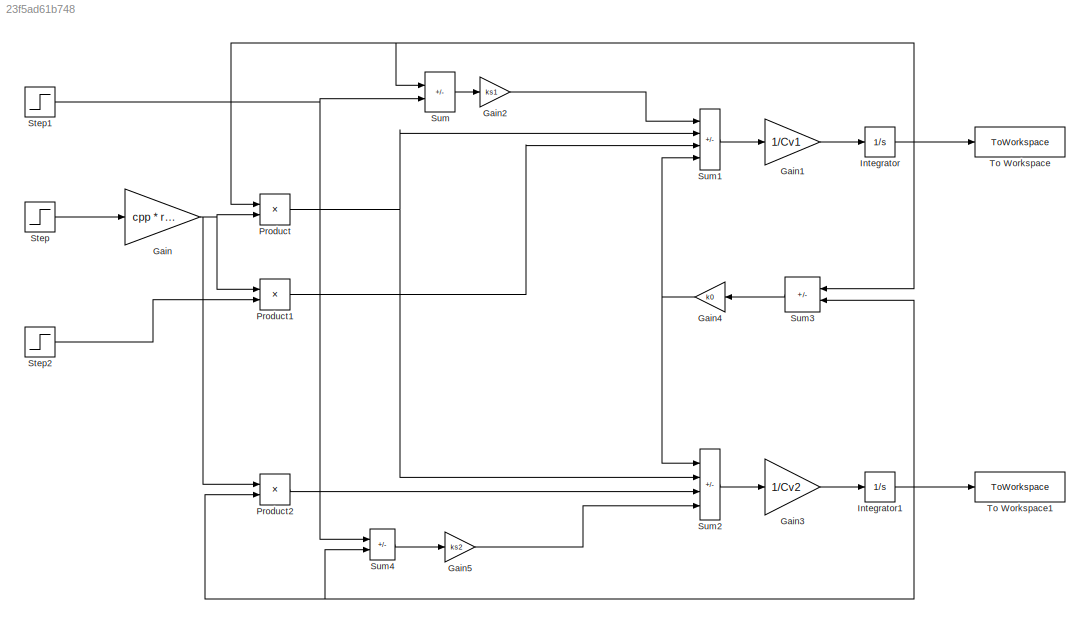
MODEL slx_23f5ad61b748
KIND model
CONFIG AbsTol = auto
CONFIG EnableMultiTasking = off
CONFIG FixedStep = auto
CONFIG MaxStep = auto
CONFIG MinStep = auto
CONFIG RelTol = 1e-3
CONFIG SampleTimeConstraint = Unconstrained
CONFIG SolverName = VariableStepAuto
CONFIG StartTime = 0.0
CONFIG StopTime = 10.0
BLOCK [Gain] Gain
  Gain = cpp * rop
BLOCK [Gain] Gain1
  Gain = 1/Cv1
BLOCK [Gain] Gain2
  Gain = ks1
BLOCK [Gain] Gain3
  Gain = 1/Cv2
BLOCK [Gain] Gain4
  Gain = k0
  NameLocation = top
BLOCK [Gain] Gain5
  Gain = ks2
BLOCK [Integrator] Integrator
  InitialCondition = Twew10
BLOCK [Integrator] Integrator1
  InitialCondition = Twew20
BLOCK [Product] Product
BLOCK [Product] Product1
BLOCK [Product] Product2
BLOCK [Step] Step
  After = fk0 + dfk
  Before = fk0
  SampleTime = 0
  Time = T0
BLOCK [Step] Step1
  After = Tzew0 + dTzew
  Before = Tzew0
  SampleTime = 0
  Time = T0
BLOCK [Step] Step2
  After = Tkz0 + dTkz
  Before = Tkz0
  SampleTime = 0
  Time = T0
BLOCK [Sum] Sum
  IconShape = rectangular
  Inputs = +-
BLOCK [Sum] Sum1
  IconShape = rectangular
  Inputs = --+-
BLOCK [Sum] Sum2
  IconShape = rectangular
  Inputs = ++--
BLOCK [Sum] Sum3
  IconShape = rectangular
  Inputs = +-
  NameLocation = top
BLOCK [Sum] Sum4
  IconShape = rectangular
  Inputs = -+
BLOCK [ToWorkspace] To Workspace
  FixptAsFi = on
  MaxDataPoints = inf
  SampleTime = -1
  VariableName = Twew1
BLOCK [ToWorkspace] To Workspace1
  FixptAsFi = on
  MaxDataPoints = inf
  SampleTime = -1
  VariableName = Twew2
LINE Gain1:1 -> Integrator:1
LINE Gain2:1 -> Sum1:1
LINE Gain3:1 -> Integrator1:1
NET Gain4:1 -> Sum1:4, Sum2:1
LINE Gain5:1 -> Sum2:4
NET Gain:1 -> Product1:1, Product2:1, Product:2
NET Integrator1:1 -> Product2:2, Sum3:2, Sum4:2, To Workspace1:1
NET Integrator:1 -> Product:1, Sum3:1, Sum:1, To Workspace:1
LINE Product1:1 -> Sum1:3
LINE Product2:1 -> Sum2:3
NET Product:1 -> Sum1:2, Sum2:2
NET Step1:1 -> Sum4:1, Sum:2
LINE Step2:1 -> Product1:2
LINE Step:1 -> Gain:1
LINE Sum1:1 -> Gain1:1
LINE Sum2:1 -> Gain3:1
LINE Sum3:1 -> Gain4:1
LINE Sum4:1 -> Gain5:1
LINE Sum:1 -> Gain2:1
note: NET lines group one-source signal fan-out (src -> all destinations, sorted); 1:1 wires keep LINE
